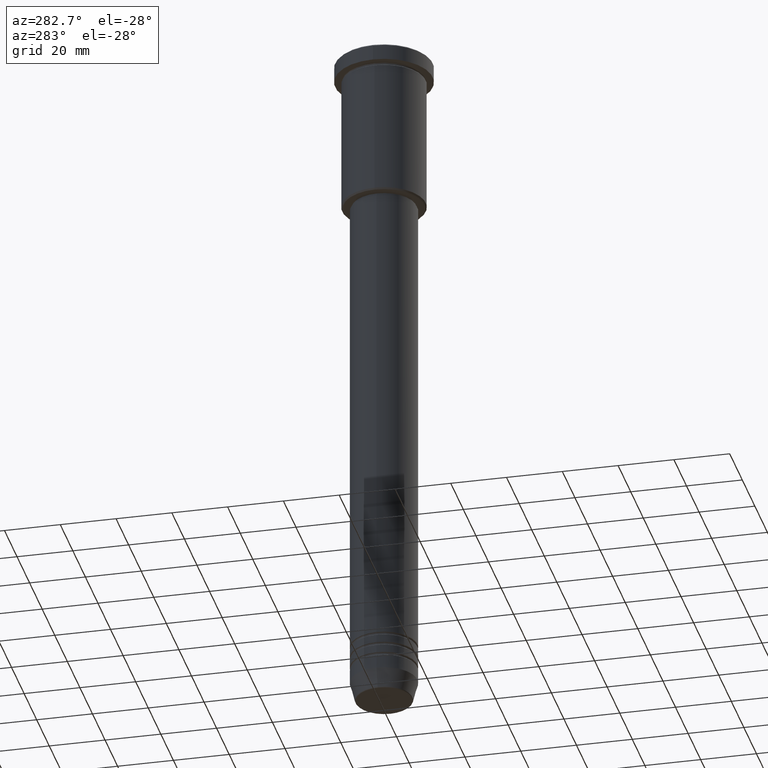
[diagram: clean part render]
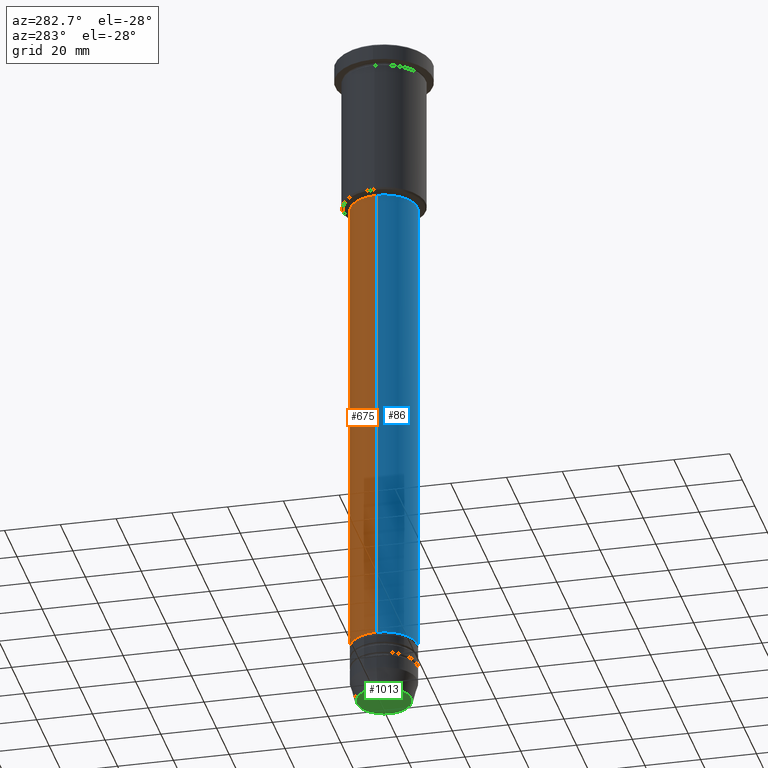
[diagram: same view with three faces highlighted in distinct colors, each labeled with its STEP entity id]
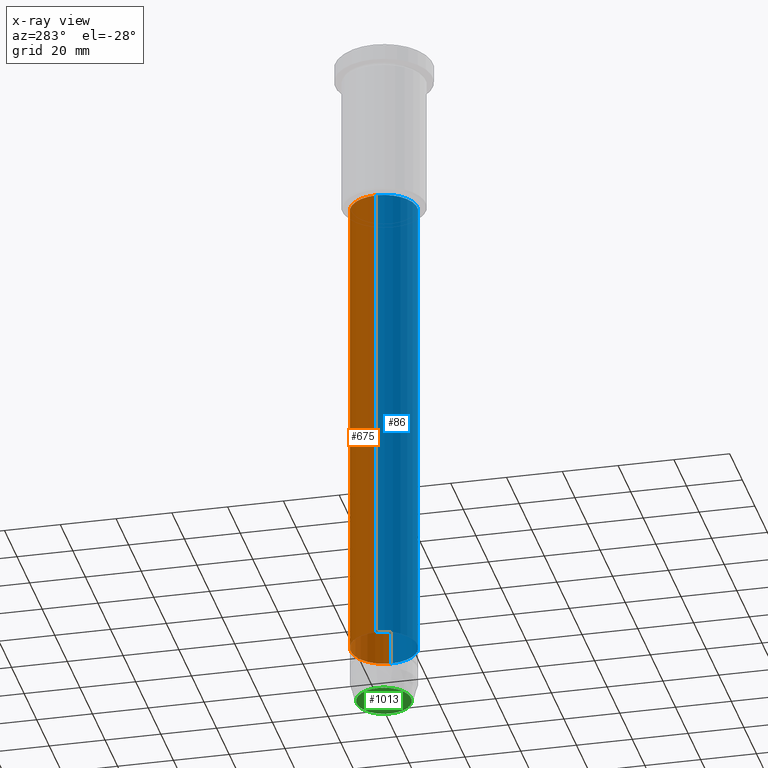
[diagram: x-ray of the same camera — body ghosted, the three highlighted faces saturated]
A machine part, auxiliary view with three faces highlighted in distinct colors.
The next image is the same camera in x-ray (body ghosted, the three faces saturated) — at least one of them is partly hidden behind the body in this view.
Their STEP definitions:

[orange] entity #675 — the highlighted cylindrical surface (edge-blend (fillet) strip) has radius 12 mm, axis along (-0, -0, 1).
#13 = AXIS2_PLACEMENT_3D ( 'NONE', #925, #479, #1016 ) ;
#44 = VERTEX_POINT ( 'NONE', #224 ) ;
#65 = DIRECTION ( 'NONE',  ( -0.000000000000000000, -0.000000000000000000, 1.000000000000000000 ) ) ;
#165 = CARTESIAN_POINT ( 'NONE',  ( -12.00000000000000000, 1.469576158976823947E-15, -57.00000000000002842 ) ) ;
#212 = CARTESIAN_POINT ( 'NONE',  ( -12.00000000000000000, 1.469576158976823947E-15, -229.9999999999998863 ) ) ;
#224 = CARTESIAN_POINT ( 'NONE',  ( 12.00000000000000000, 0.000000000000000000, -57.00000000000002842 ) ) ;
#233 = ORIENTED_EDGE ( 'NONE', *, *, #1049, .T. ) ;
#259 = VERTEX_POINT ( 'NONE', #212 ) ;
#264 = EDGE_LOOP ( 'NONE', ( #784, #233, #753, #687 ) ) ;
#345 = CARTESIAN_POINT ( 'NONE',  ( 0.000000000000000000, 0.000000000000000000, -229.9999999999998863 ) ) ;
#402 = CIRCLE ( 'NONE', #1068, 12.00000000000000000 ) ;
#439 = AXIS2_PLACEMENT_3D ( 'NONE', #345, #528, #1079 ) ;
#444 = DIRECTION ( 'NONE',  ( -0.000000000000000000, -0.000000000000000000, 1.000000000000000000 ) ) ;
#461 = EDGE_CURVE ( 'NONE', #525, #44, #689, .T. ) ;
#479 = DIRECTION ( 'NONE',  ( -0.000000000000000000, -0.000000000000000000, 1.000000000000000000 ) ) ;
#518 = CARTESIAN_POINT ( 'NONE',  ( 12.00000000000000000, 0.000000000000000000, 0.000000000000000000 ) ) ;
#525 = VERTEX_POINT ( 'NONE', #891 ) ;
#528 = DIRECTION ( 'NONE',  ( -0.000000000000000000, -0.000000000000000000, 1.000000000000000000 ) ) ;
#569 = VECTOR ( 'NONE', #775, 1000.000000000000000 ) ;
#588 = VERTEX_POINT ( 'NONE', #165 ) ;
#615 = LINE ( 'NONE', #709, #679 ) ;
#623 = EDGE_CURVE ( 'NONE', #525, #259, #743, .T. ) ;
#633 = CARTESIAN_POINT ( 'NONE',  ( 0.000000000000000000, 0.000000000000000000, -57.00000000000002842 ) ) ;
#647 = FACE_OUTER_BOUND ( 'NONE', #264, .T. ) ;
#675 = ADVANCED_FACE ( 'NONE', ( #647 ), #826, .T. ) ;
#679 = VECTOR ( 'NONE', #444, 1000.000000000000000 ) ;
#687 = ORIENTED_EDGE ( 'NONE', *, *, #461, .F. ) ;
#689 = LINE ( 'NONE', #518, #569 ) ;
#709 = CARTESIAN_POINT ( 'NONE',  ( -12.00000000000000000, 1.469576158976823947E-15, 0.000000000000000000 ) ) ;
#743 = CIRCLE ( 'NONE', #439, 12.00000000000000000 ) ;
#753 = ORIENTED_EDGE ( 'NONE', *, *, #1080, .F. ) ;
#775 = DIRECTION ( 'NONE',  ( -0.000000000000000000, -0.000000000000000000, 1.000000000000000000 ) ) ;
#784 = ORIENTED_EDGE ( 'NONE', *, *, #623, .T. ) ;
#826 = CYLINDRICAL_SURFACE ( 'NONE', #13, 12.00000000000000000 ) ;
#891 = CARTESIAN_POINT ( 'NONE',  ( 12.00000000000000000, 0.000000000000000000, -229.9999999999998863 ) ) ;
#925 = CARTESIAN_POINT ( 'NONE',  ( 0.000000000000000000, 0.000000000000000000, 0.000000000000000000 ) ) ;
#983 = DIRECTION ( 'NONE',  ( 1.000000000000000000, 0.000000000000000000, 0.000000000000000000 ) ) ;
#1016 = DIRECTION ( 'NONE',  ( 1.000000000000000000, 0.000000000000000000, 0.000000000000000000 ) ) ;
#1049 = EDGE_CURVE ( 'NONE', #259, #588, #615, .T. ) ;
#1068 = AXIS2_PLACEMENT_3D ( 'NONE', #633, #65, #983 ) ;
#1079 = DIRECTION ( 'NONE',  ( 1.000000000000000000, 0.000000000000000000, 0.000000000000000000 ) ) ;
#1080 = EDGE_CURVE ( 'NONE', #44, #588, #402, .T. ) ;

[blue] entity #86 — the highlighted cylindrical surface (edge-blend (fillet) strip) has radius 12 mm, axis along (-0, -0, 1).
#19 = DIRECTION ( 'NONE',  ( 1.000000000000000000, 0.000000000000000000, 0.000000000000000000 ) ) ;
#44 = VERTEX_POINT ( 'NONE', #224 ) ;
#81 = DIRECTION ( 'NONE',  ( 1.000000000000000000, 0.000000000000000000, 0.000000000000000000 ) ) ;
#86 = ADVANCED_FACE ( 'NONE', ( #529 ), #635, .T. ) ;
#134 = ORIENTED_EDGE ( 'NONE', *, *, #1049, .F. ) ;
#160 = ORIENTED_EDGE ( 'NONE', *, *, #495, .T. ) ;
#165 = CARTESIAN_POINT ( 'NONE',  ( -12.00000000000000000, 1.469576158976823947E-15, -57.00000000000002842 ) ) ;
#212 = CARTESIAN_POINT ( 'NONE',  ( -12.00000000000000000, 1.469576158976823947E-15, -229.9999999999998863 ) ) ;
#214 = CARTESIAN_POINT ( 'NONE',  ( 0.000000000000000000, 0.000000000000000000, -57.00000000000002842 ) ) ;
#224 = CARTESIAN_POINT ( 'NONE',  ( 12.00000000000000000, 0.000000000000000000, -57.00000000000002842 ) ) ;
#257 = DIRECTION ( 'NONE',  ( -0.000000000000000000, -0.000000000000000000, 1.000000000000000000 ) ) ;
#259 = VERTEX_POINT ( 'NONE', #212 ) ;
#444 = DIRECTION ( 'NONE',  ( -0.000000000000000000, -0.000000000000000000, 1.000000000000000000 ) ) ;
#447 = CARTESIAN_POINT ( 'NONE',  ( 0.000000000000000000, 0.000000000000000000, 0.000000000000000000 ) ) ;
#461 = EDGE_CURVE ( 'NONE', #525, #44, #689, .T. ) ;
#495 = EDGE_CURVE ( 'NONE', #259, #525, #1106, .T. ) ;
#518 = CARTESIAN_POINT ( 'NONE',  ( 12.00000000000000000, 0.000000000000000000, 0.000000000000000000 ) ) ;
#525 = VERTEX_POINT ( 'NONE', #891 ) ;
#529 = FACE_OUTER_BOUND ( 'NONE', #889, .T. ) ;
#550 = AXIS2_PLACEMENT_3D ( 'NONE', #447, #257, #81 ) ;
#569 = VECTOR ( 'NONE', #775, 1000.000000000000000 ) ;
#576 = CIRCLE ( 'NONE', #848, 12.00000000000000000 ) ;
#584 = DIRECTION ( 'NONE',  ( 1.000000000000000000, 0.000000000000000000, 0.000000000000000000 ) ) ;
#588 = VERTEX_POINT ( 'NONE', #165 ) ;
#615 = LINE ( 'NONE', #709, #679 ) ;
#635 = CYLINDRICAL_SURFACE ( 'NONE', #550, 12.00000000000000000 ) ;
#676 = DIRECTION ( 'NONE',  ( -0.000000000000000000, -0.000000000000000000, 1.000000000000000000 ) ) ;
#679 = VECTOR ( 'NONE', #444, 1000.000000000000000 ) ;
#689 = LINE ( 'NONE', #518, #569 ) ;
#709 = CARTESIAN_POINT ( 'NONE',  ( -12.00000000000000000, 1.469576158976823947E-15, 0.000000000000000000 ) ) ;
#775 = DIRECTION ( 'NONE',  ( -0.000000000000000000, -0.000000000000000000, 1.000000000000000000 ) ) ;
#848 = AXIS2_PLACEMENT_3D ( 'NONE', #214, #907, #19 ) ;
#866 = ORIENTED_EDGE ( 'NONE', *, *, #1182, .F. ) ;
#889 = EDGE_LOOP ( 'NONE', ( #134, #160, #946, #866 ) ) ;
#891 = CARTESIAN_POINT ( 'NONE',  ( 12.00000000000000000, 0.000000000000000000, -229.9999999999998863 ) ) ;
#907 = DIRECTION ( 'NONE',  ( -0.000000000000000000, -0.000000000000000000, 1.000000000000000000 ) ) ;
#930 = AXIS2_PLACEMENT_3D ( 'NONE', #1132, #676, #584 ) ;
#946 = ORIENTED_EDGE ( 'NONE', *, *, #461, .T. ) ;
#1049 = EDGE_CURVE ( 'NONE', #259, #588, #615, .T. ) ;
#1106 = CIRCLE ( 'NONE', #930, 12.00000000000000000 ) ;
#1132 = CARTESIAN_POINT ( 'NONE',  ( 0.000000000000000000, 0.000000000000000000, -229.9999999999998863 ) ) ;
#1182 = EDGE_CURVE ( 'NONE', #588, #44, #576, .T. ) ;

[green] entity #1013 — the highlighted planar face has unit normal (0, -0, 1).
#61 = VERTEX_POINT ( 'NONE', #269 ) ;
#170 = PLANE ( 'NONE',  #459 ) ;
#229 = CARTESIAN_POINT ( 'NONE',  ( 0.000000000000000000, 0.000000000000000000, -251.0000000000000000 ) ) ;
#254 = CARTESIAN_POINT ( 'NONE',  ( 0.000000000000000000, 0.000000000000000000, -251.0000000000000000 ) ) ;
#269 = CARTESIAN_POINT ( 'NONE',  ( -9.740692158992658278, 1.222463696683474999E-15, -251.0000000000000000 ) ) ;
#301 = AXIS2_PLACEMENT_3D ( 'NONE', #603, #1038, #788 ) ;
#314 = DIRECTION ( 'NONE',  ( 1.000000000000000000, 0.000000000000000000, 0.000000000000000000 ) ) ;
#407 = EDGE_CURVE ( 'NONE', #1165, #61, #1178, .T. ) ;
#423 = EDGE_CURVE ( 'NONE', #61, #1165, #1103, .T. ) ;
#438 = AXIS2_PLACEMENT_3D ( 'NONE', #229, #860, #314 ) ;
#459 = AXIS2_PLACEMENT_3D ( 'NONE', #254, #620, #1155 ) ;
#504 = ORIENTED_EDGE ( 'NONE', *, *, #423, .T. ) ;
#603 = CARTESIAN_POINT ( 'NONE',  ( 0.000000000000000000, 0.000000000000000000, -251.0000000000000000 ) ) ;
#620 = DIRECTION ( 'NONE',  ( 0.000000000000000000, -0.000000000000000000, 1.000000000000000000 ) ) ;
#788 = DIRECTION ( 'NONE',  ( 1.000000000000000000, 0.000000000000000000, 0.000000000000000000 ) ) ;
#860 = DIRECTION ( 'NONE',  ( 0.000000000000000000, 0.000000000000000000, -1.000000000000000000 ) ) ;
#861 = ORIENTED_EDGE ( 'NONE', *, *, #407, .T. ) ;
#901 = FACE_OUTER_BOUND ( 'NONE', #1010, .T. ) ;
#915 = CARTESIAN_POINT ( 'NONE',  ( 9.740692158992658278, 0.000000000000000000, -251.0000000000000000 ) ) ;
#1010 = EDGE_LOOP ( 'NONE', ( #861, #504 ) ) ;
#1013 = ADVANCED_FACE ( 'NONE', ( #901 ), #170, .F. ) ;
#1038 = DIRECTION ( 'NONE',  ( 0.000000000000000000, 0.000000000000000000, -1.000000000000000000 ) ) ;
#1103 = CIRCLE ( 'NONE', #301, 9.740692158992658278 ) ;
#1155 = DIRECTION ( 'NONE',  ( 1.000000000000000000, 0.000000000000000000, 0.000000000000000000 ) ) ;
#1165 = VERTEX_POINT ( 'NONE', #915 ) ;
#1178 = CIRCLE ( 'NONE', #438, 9.740692158992658278 ) ;